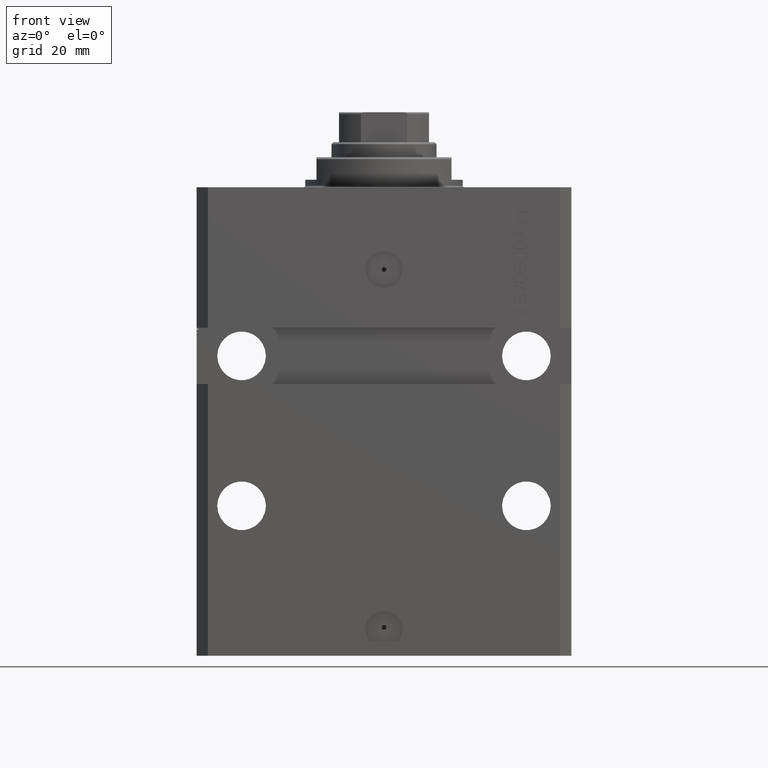
[diagram: clean part render]
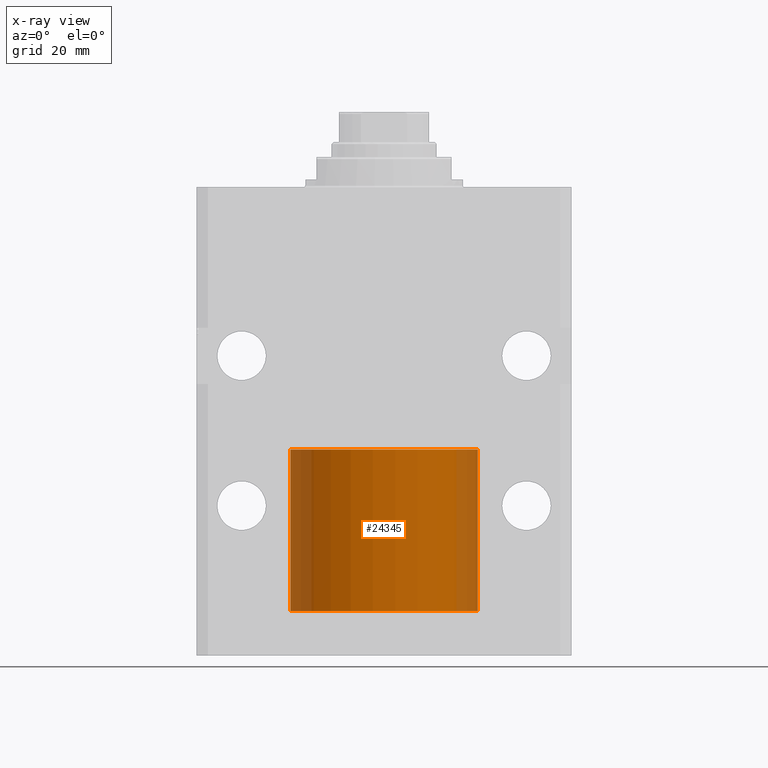
[diagram: x-ray — body ghosted, one internal face saturated and labeled with its STEP entity id]
A machine part, front view, then the same camera in x-ray: the body is ghosted and one INTERNAL B-rep face — a face not visible from any outside direction — is saturated and labeled: STEP entity #24345.
In plain terms, the highlighted cylindrical surface (partial cylindrical patch) has radius 25 mm, axis along (-0, -0, -1).
Its self-contained STEP definition (entity closure, byte-faithful):
#41 = AXIS2_PLACEMENT_3D ( 'NONE', #26036, #29692, #44545 ) ;
#1160 = ORIENTED_EDGE ( 'NONE', *, *, #5820, .T. ) ;
#2698 = DIRECTION ( 'NONE',  ( 1.000000000000000000, 0.000000000000000000, 0.000000000000000000 ) ) ;
#3909 = AXIS2_PLACEMENT_3D ( 'NONE', #20729, #44085, #2698 ) ;
#5820 = EDGE_CURVE ( 'NONE', #17859, #36048, #32689, .T. ) ;
#6946 = CARTESIAN_POINT ( 'NONE',  ( 25.00000000000000000, 3.061616997868383043E-15, 43.10000000000000142 ) ) ;
#10422 = CARTESIAN_POINT ( 'NONE',  ( 25.00000000000000000, 3.061616997868383043E-15, 0.000000000000000000 ) ) ;
#13785 = CARTESIAN_POINT ( 'NONE',  ( 25.00000000000000000, 3.061616997868383043E-15, 43.10000000000000142 ) ) ;
#14080 = VERTEX_POINT ( 'NONE', #13785 ) ;
#15422 = EDGE_LOOP ( 'NONE', ( #30024, #19414, #48180, #1160 ) ) ;
#16203 = EDGE_CURVE ( 'NONE', #14080, #36048, #47391, .T. ) ;
#17859 = VERTEX_POINT ( 'NONE', #32274 ) ;
#18278 = VECTOR ( 'NONE', #28147, 1000.000000000000000 ) ;
#18320 = VERTEX_POINT ( 'NONE', #35269 ) ;
#19414 = ORIENTED_EDGE ( 'NONE', *, *, #38104, .F. ) ;
#19997 = EDGE_CURVE ( 'NONE', #18320, #17859, #38147, .T. ) ;
#20708 = AXIS2_PLACEMENT_3D ( 'NONE', #30247, #40290, #26597 ) ;
#20729 = CARTESIAN_POINT ( 'NONE',  ( 0.000000000000000000, 0.000000000000000000, 0.000000000000000000 ) ) ;
#24345 = ADVANCED_FACE ( 'NONE', ( #47357 ), #37787, .T. ) ;
#25910 = VECTOR ( 'NONE', #36673, 1000.000000000000000 ) ;
#26036 = CARTESIAN_POINT ( 'NONE',  ( 0.000000000000000000, 0.000000000000000000, 43.10000000000000142 ) ) ;
#26473 = CIRCLE ( 'NONE', #41, 25.00000000000000000 ) ;
#26597 = DIRECTION ( 'NONE',  ( -1.000000000000000000, 0.000000000000000000, 0.000000000000000000 ) ) ;
#27677 = CARTESIAN_POINT ( 'NONE',  ( -25.00000000000000000, 0.000000000000000000, 43.10000000000000142 ) ) ;
#28147 = DIRECTION ( 'NONE',  ( -0.000000000000000000, -0.000000000000000000, -1.000000000000000000 ) ) ;
#29692 = DIRECTION ( 'NONE',  ( 0.000000000000000000, 0.000000000000000000, 1.000000000000000000 ) ) ;
#30024 = ORIENTED_EDGE ( 'NONE', *, *, #16203, .F. ) ;
#30247 = CARTESIAN_POINT ( 'NONE',  ( 0.000000000000000000, 0.000000000000000000, 43.10000000000000142 ) ) ;
#32274 = CARTESIAN_POINT ( 'NONE',  ( -25.00000000000000000, 0.000000000000000000, 0.000000000000000000 ) ) ;
#32689 = CIRCLE ( 'NONE', #3909, 25.00000000000000000 ) ;
#35269 = CARTESIAN_POINT ( 'NONE',  ( -25.00000000000000000, 0.000000000000000000, 43.10000000000000142 ) ) ;
#36048 = VERTEX_POINT ( 'NONE', #10422 ) ;
#36673 = DIRECTION ( 'NONE',  ( -0.000000000000000000, -0.000000000000000000, -1.000000000000000000 ) ) ;
#37787 = CYLINDRICAL_SURFACE ( 'NONE', #20708, 25.00000000000000000 ) ;
#38104 = EDGE_CURVE ( 'NONE', #18320, #14080, #26473, .T. ) ;
#38147 = LINE ( 'NONE', #27677, #18278 ) ;
#40290 = DIRECTION ( 'NONE',  ( -0.000000000000000000, -0.000000000000000000, -1.000000000000000000 ) ) ;
#44085 = DIRECTION ( 'NONE',  ( 0.000000000000000000, 0.000000000000000000, 1.000000000000000000 ) ) ;
#44545 = DIRECTION ( 'NONE',  ( 1.000000000000000000, 0.000000000000000000, 0.000000000000000000 ) ) ;
#47357 = FACE_OUTER_BOUND ( 'NONE', #15422, .T. ) ;
#47391 = LINE ( 'NONE', #6946, #25910 ) ;
#48180 = ORIENTED_EDGE ( 'NONE', *, *, #19997, .T. ) ;